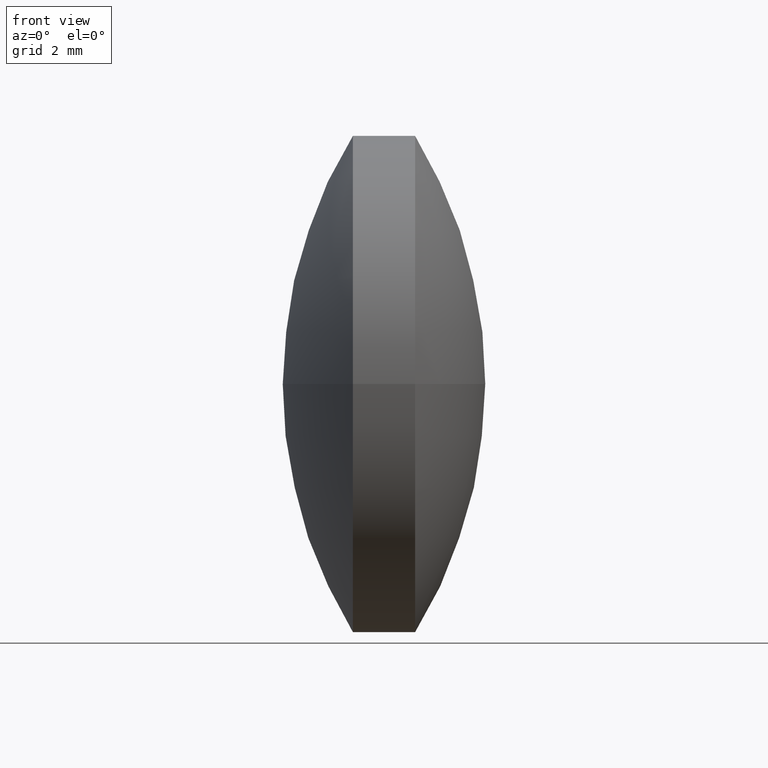
[diagram: clean part render]
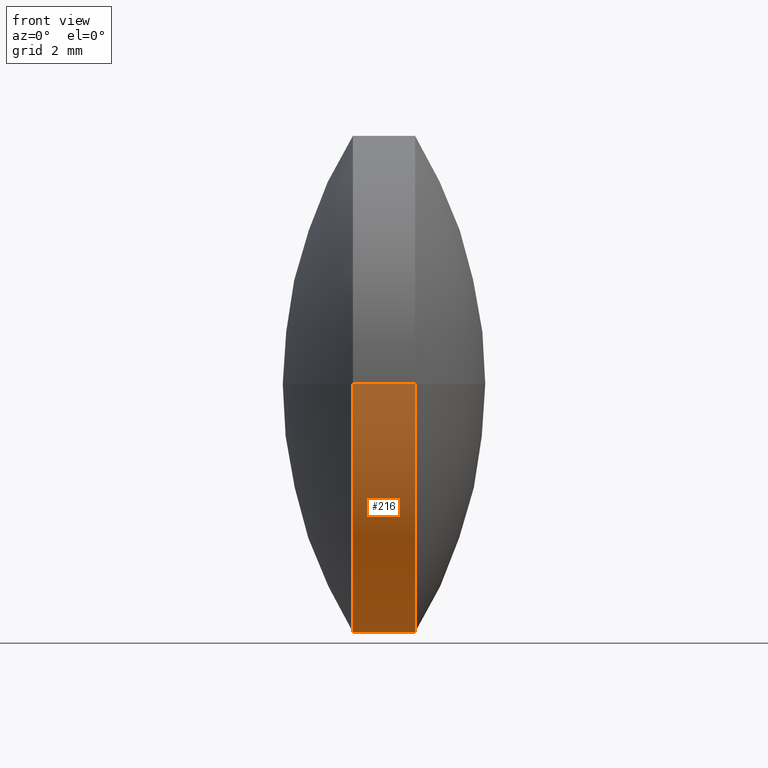
[diagram: same view with one face highlighted and labeled with its STEP entity id]
A machine part, front view. The second image highlights one B-rep face of the part: STEP entity #216.
In plain terms, the highlighted cylindrical surface (partial cylindrical patch) has radius 8 mm, axis along (-1, -0, -0).
Its self-contained STEP definition (entity closure, byte-faithful):
#1 = ORIENTED_EDGE ( 'NONE', *, *, #147, .T. ) ;
#7 = CARTESIAN_POINT ( 'NONE',  ( 55.46185434624406700, 38.62432316421085700, 9.797174393178758600E-016 ) ) ;
#8 = ORIENTED_EDGE ( 'NONE', *, *, #215, .F. ) ;
#16 = VECTOR ( 'NONE', #287, 1000.000000000000000 ) ;
#27 = VERTEX_POINT ( 'NONE', #39 ) ;
#29 = DIRECTION ( 'NONE',  ( -1.000000000000000000, -3.453227301823334800E-015, -0.0000000000000000000 ) ) ;
#39 = CARTESIAN_POINT ( 'NONE',  ( 55.46185434624412400, 22.62432316421092800, 0.0000000000000000000 ) ) ;
#42 = VECTOR ( 'NONE', #244, 1000.000000000000000 ) ;
#45 = DIRECTION ( 'NONE',  ( 3.469446951953622900E-015, -1.000000000000000000, 0.0000000000000000000 ) ) ;
#47 = CARTESIAN_POINT ( 'NONE',  ( 53.46185434624409500, 30.62432316421086800, 0.0000000000000000000 ) ) ;
#59 = AXIS2_PLACEMENT_3D ( 'NONE', #304, #29, #129 ) ;
#77 = CARTESIAN_POINT ( 'NONE',  ( 53.46185434624406700, 38.62432316421085700, 0.0000000000000000000 ) ) ;
#95 = VERTEX_POINT ( 'NONE', #7 ) ;
#101 = CARTESIAN_POINT ( 'NONE',  ( 49.57645588697565100, 30.62432316421085700, 0.0000000000000000000 ) ) ;
#119 = CARTESIAN_POINT ( 'NONE',  ( 49.57645588697562300, 38.62432316421082800, 9.797174393178796100E-016 ) ) ;
#124 = ORIENTED_EDGE ( 'NONE', *, *, #200, .T. ) ;
#125 = CARTESIAN_POINT ( 'NONE',  ( 49.57645588697568000, 22.62432316421087800, 0.0000000000000000000 ) ) ;
#128 = VERTEX_POINT ( 'NONE', #138 ) ;
#129 = DIRECTION ( 'NONE',  ( 3.469446951953626000E-015, -1.000000000000000000, 0.0000000000000000000 ) ) ;
#136 = CIRCLE ( 'NONE', #59, 7.999999999999972500 ) ;
#138 = CARTESIAN_POINT ( 'NONE',  ( 53.46185434624411700, 22.62432316421085000, -9.797174393178811900E-016 ) ) ;
#147 = EDGE_CURVE ( 'NONE', #27, #128, #158, .T. ) ;
#158 = LINE ( 'NONE', #125, #42 ) ;
#162 = AXIS2_PLACEMENT_3D ( 'NONE', #101, #292, #247 ) ;
#177 = LINE ( 'NONE', #119, #16 ) ;
#185 = FACE_OUTER_BOUND ( 'NONE', #199, .T. ) ;
#193 = EDGE_CURVE ( 'NONE', #95, #214, #177, .T. ) ;
#199 = EDGE_LOOP ( 'NONE', ( #249, #124, #1, #8 ) ) ;
#200 = EDGE_CURVE ( 'NONE', #95, #27, #136, .T. ) ;
#201 = CYLINDRICAL_SURFACE ( 'NONE', #162, 7.999999999999976000 ) ;
#214 = VERTEX_POINT ( 'NONE', #77 ) ;
#215 = EDGE_CURVE ( 'NONE', #214, #128, #226, .T. ) ;
#216 = ADVANCED_FACE ( 'NONE', ( #185 ), #201, .T. ) ;
#222 = DIRECTION ( 'NONE',  ( -1.000000000000000000, -3.453227301823334800E-015, -0.0000000000000000000 ) ) ;
#226 = CIRCLE ( 'NONE', #258, 7.999999999999979600 ) ;
#244 = DIRECTION ( 'NONE',  ( -1.000000000000000000, -3.453227301823334800E-015, -0.0000000000000000000 ) ) ;
#247 = DIRECTION ( 'NONE',  ( 3.469446951953624400E-015, -1.000000000000000000, 0.0000000000000000000 ) ) ;
#249 = ORIENTED_EDGE ( 'NONE', *, *, #193, .F. ) ;
#258 = AXIS2_PLACEMENT_3D ( 'NONE', #47, #222, #45 ) ;
#287 = DIRECTION ( 'NONE',  ( -1.000000000000000000, -3.453227301823334800E-015, -0.0000000000000000000 ) ) ;
#292 = DIRECTION ( 'NONE',  ( -1.000000000000000000, -3.453227301823334800E-015, -0.0000000000000000000 ) ) ;
#304 = CARTESIAN_POINT ( 'NONE',  ( 55.46185434624409500, 30.62432316421087500, 0.0000000000000000000 ) ) ;